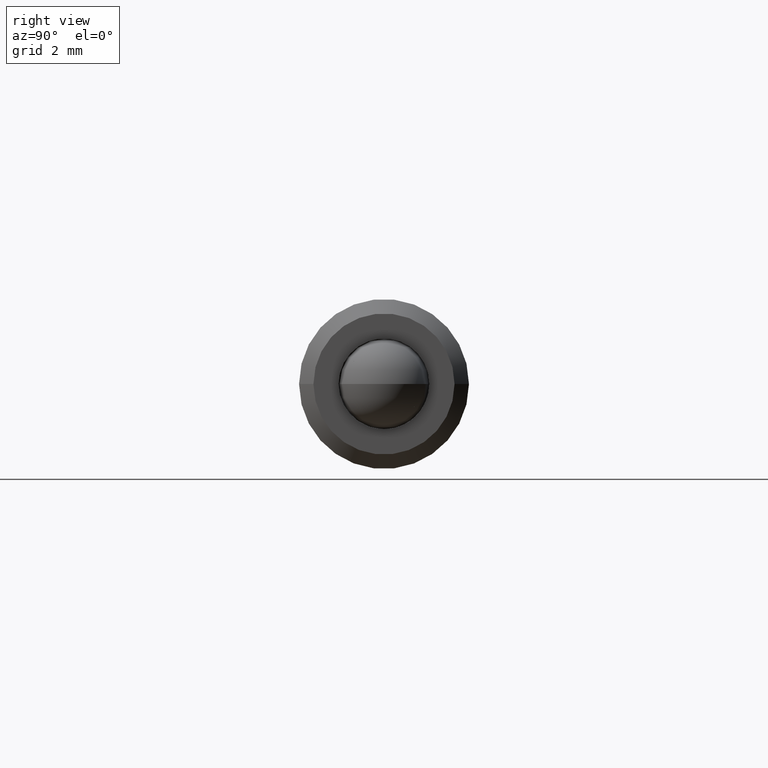
[diagram: clean part render]
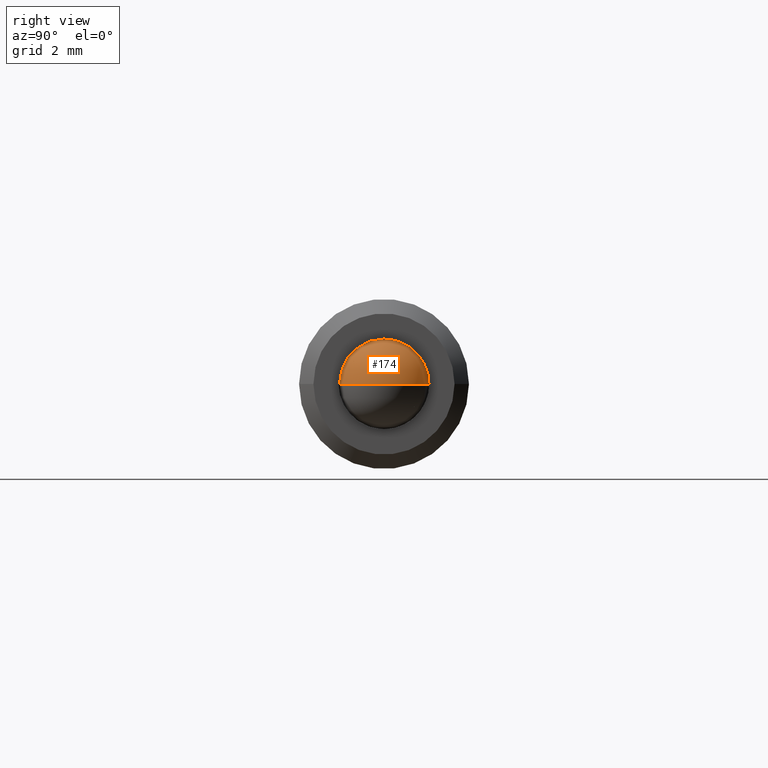
[diagram: same view with one face highlighted and labeled with its STEP entity id]
A machine part, right view. The second image highlights one B-rep face of the part: STEP entity #174.
In plain terms, the highlighted spherical surface has radius 0.7763 mm.
Its self-contained STEP definition (entity closure, byte-faithful):
#52 = CIRCLE ( 'NONE', #61, 0.03056318681318671500 ) ;
#61 = AXIS2_PLACEMENT_3D ( 'NONE', #709, #708, #707 ) ;
#153 = EDGE_CURVE ( 'NONE', #341, #360, #52, .T. ) ;
#169 = EDGE_CURVE ( 'NONE', #341, #360, #737, .T. ) ;
#174 = ADVANCED_FACE ( 'NONE', ( #227 ), #226, .T. ) ;
#226 = SPHERICAL_SURFACE ( 'NONE', #754, 0.03056318681318671500 ) ;
#227 = FACE_OUTER_BOUND ( 'NONE', #292, .T. ) ;
#292 = EDGE_LOOP ( 'NONE', ( #1079, #1077 ) ) ;
#341 = VERTEX_POINT ( 'NONE', #932 ) ;
#360 = VERTEX_POINT ( 'NONE', #896 ) ;
#415 = CARTESIAN_POINT ( 'NONE',  ( -0.6071646571268493100, 0.3912487977552119300, 0.1623174067725003900 ) ) ;
#416 = DIRECTION ( 'NONE',  ( 0.0000000000000000000, -0.0000000000000000000, 1.000000000000000000 ) ) ;
#417 = DIRECTION ( 'NONE',  ( 0.0000000000000000000, 1.000000000000000000, 0.0000000000000000000 ) ) ;
#445 = DIRECTION ( 'NONE',  ( 0.0000000000000000000, -1.000000000000000000, 0.0000000000000000000 ) ) ;
#585 = CARTESIAN_POINT ( 'NONE',  ( -0.6071646571268493100, 0.3912487977552119300, 0.1623174067725003900 ) ) ;
#621 = DIRECTION ( 'NONE',  ( 6.008276078851638200E-032, 1.224646799147353200E-016, 1.000000000000000000 ) ) ;
#707 = DIRECTION ( 'NONE',  ( -1.000000000000000000, 0.0000000000000000000, 0.0000000000000000000 ) ) ;
#708 = DIRECTION ( 'NONE',  ( 0.0000000000000000000, 0.0000000000000000000, -1.000000000000000000 ) ) ;
#709 = CARTESIAN_POINT ( 'NONE',  ( -0.6071646571268493100, 0.3912487977552119300, 0.1623174067725003900 ) ) ;
#737 = CIRCLE ( 'NONE', #750, 0.03056318681318671500 ) ;
#750 = AXIS2_PLACEMENT_3D ( 'NONE', #585, #621, #445 ) ;
#754 = AXIS2_PLACEMENT_3D ( 'NONE', #415, #416, #417 ) ;
#896 = CARTESIAN_POINT ( 'NONE',  ( -0.5766014703136626000, 0.3912487977552119300, 0.1623174067725003900 ) ) ;
#932 = CARTESIAN_POINT ( 'NONE',  ( -0.6377278439400360100, 0.3912487977552119300, 0.1623174067725003900 ) ) ;
#1077 = ORIENTED_EDGE ( 'NONE', *, *, #169, .T. ) ;
#1079 = ORIENTED_EDGE ( 'NONE', *, *, #153, .F. ) ;